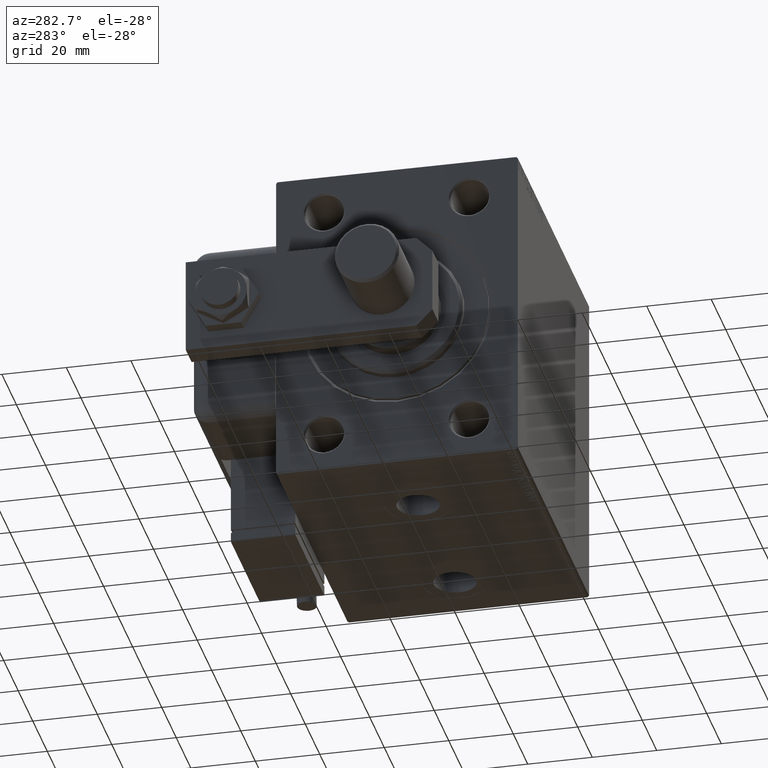
[diagram: clean part render]
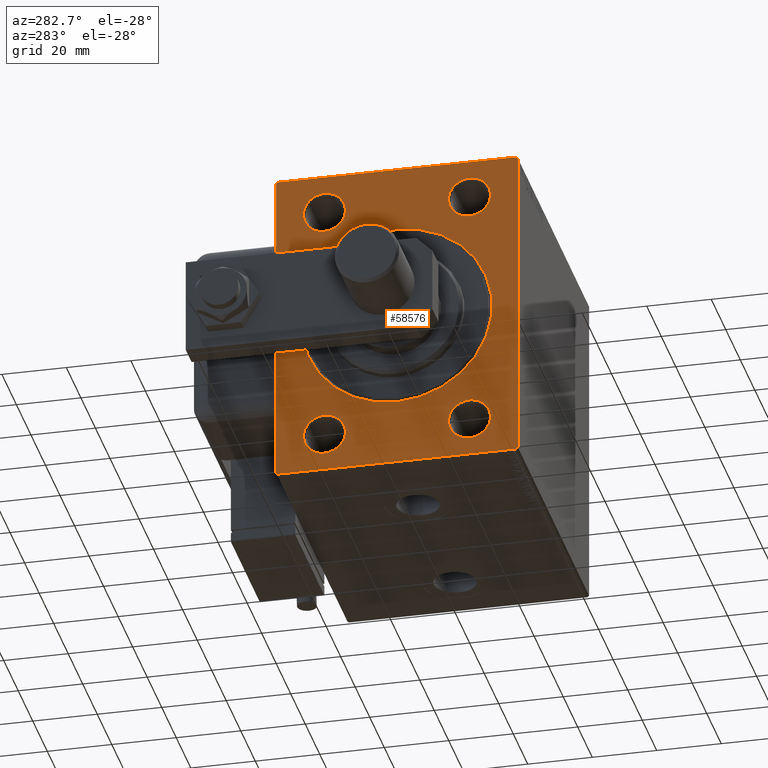
[diagram: same view with one face highlighted and labeled with its STEP entity id]
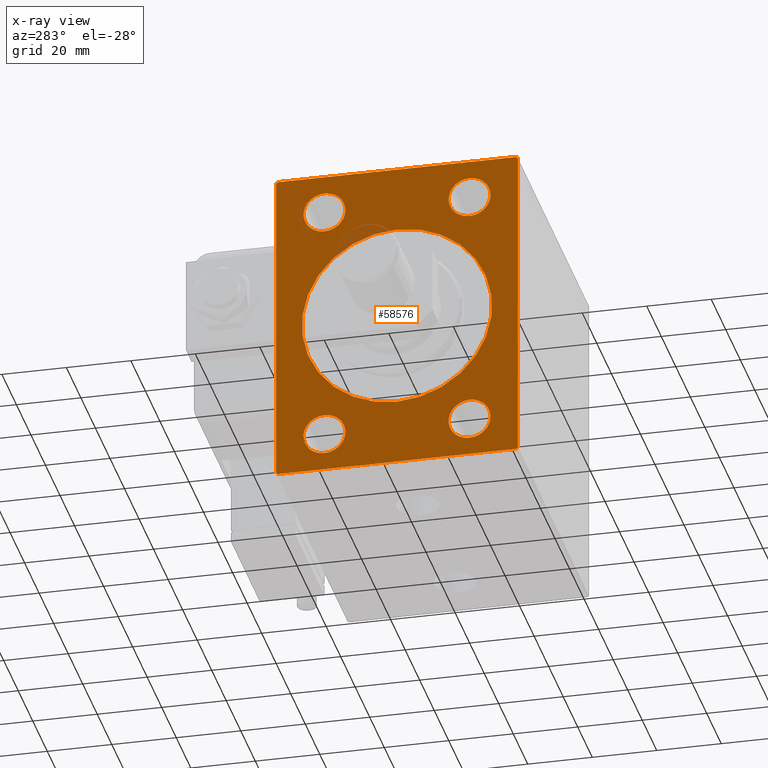
[diagram: x-ray of the same camera — body ghosted, the highlighted face saturated]
A machine part, auxiliary view. The second image highlights one B-rep face of the part: STEP entity #58576.
The next image is the same camera in x-ray: the body ghosted, the highlighted face saturated — about 2% of this face is hidden behind the body in this view.
In plain terms, the highlighted planar face has unit normal (1, 0, 0).
Its self-contained STEP definition (entity closure, byte-faithful):
#138 = AXIS2_PLACEMENT_3D ( 'NONE', #30244, #12131, #49274 ) ;
#396 = CARTESIAN_POINT ( 'NONE',  ( 0.000000000000000000, 37.00000000000000711, 50.00000000000000711 ) ) ;
#797 = ORIENTED_EDGE ( 'NONE', *, *, #22876, .T. ) ;
#922 = VECTOR ( 'NONE', #52270, 999.9999999999998863 ) ;
#1650 = VERTEX_POINT ( 'NONE', #38860 ) ;
#2864 = LINE ( 'NONE', #58121, #60255 ) ;
#2927 = FACE_BOUND ( 'NONE', #16418, .T. ) ;
#2989 = CARTESIAN_POINT ( 'NONE',  ( 0.000000000000000000, 22.50000000000000000, 44.49999999999998579 ) ) ;
#3238 = CARTESIAN_POINT ( 'NONE',  ( 0.000000000000000000, 37.00000000000000711, 50.00000000000000711 ) ) ;
#3618 = ORIENTED_EDGE ( 'NONE', *, *, #46144, .T. ) ;
#4849 = CARTESIAN_POINT ( 'NONE',  ( 0.000000000000000000, -22.50000000000000000, 31.50000000000000000 ) ) ;
#4969 = DIRECTION ( 'NONE',  ( 0.000000000000000000, 0.000000000000000000, -1.000000000000000000 ) ) ;
#5063 = CARTESIAN_POINT ( 'NONE',  ( 0.000000000000000000, 22.50000000000000000, 31.50000000000000000 ) ) ;
#5193 = ORIENTED_EDGE ( 'NONE', *, *, #11098, .T. ) ;
#5438 = CIRCLE ( 'NONE', #44652, 6.499999999999992006 ) ;
#5454 = CARTESIAN_POINT ( 'NONE',  ( 0.000000000000000000, -37.50000000000000000, 49.99999999999998579 ) ) ;
#5763 = EDGE_CURVE ( 'NONE', #52979, #28577, #6242, .T. ) ;
#6242 = LINE ( 'NONE', #33878, #24139 ) ;
#6357 = DIRECTION ( 'NONE',  ( 1.000000000000000000, 0.000000000000000000, 0.000000000000000000 ) ) ;
#7080 = ORIENTED_EDGE ( 'NONE', *, *, #8226, .T. ) ;
#7282 = ORIENTED_EDGE ( 'NONE', *, *, #17955, .F. ) ;
#7865 = CARTESIAN_POINT ( 'NONE',  ( 0.000000000000000000, 3.612708057484693970E-15, -29.50000000000001421 ) ) ;
#8226 = EDGE_CURVE ( 'NONE', #33283, #53509, #38046, .T. ) ;
#8267 = DIRECTION ( 'NONE',  ( 0.000000000000000000, -1.387778780781445676E-16, 1.000000000000000000 ) ) ;
#8679 = CARTESIAN_POINT ( 'NONE',  ( 0.000000000000000000, -22.50000000000000000, -38.00000000000000711 ) ) ;
#9590 = DIRECTION ( 'NONE',  ( 1.000000000000000000, 0.000000000000000000, 0.000000000000000000 ) ) ;
#10151 = VERTEX_POINT ( 'NONE', #5063 ) ;
#10915 = CIRCLE ( 'NONE', #138, 6.499999999999992006 ) ;
#10922 = CARTESIAN_POINT ( 'NONE',  ( 0.000000000000000000, 37.50000000000000711, -49.50000000000001421 ) ) ;
#10948 = CARTESIAN_POINT ( 'NONE',  ( 0.000000000000000000, 22.50000000000000000, -31.50000000000001421 ) ) ;
#11098 = EDGE_CURVE ( 'NONE', #44084, #25199, #28939, .T. ) ;
#11830 = AXIS2_PLACEMENT_3D ( 'NONE', #16765, #6357, #25091 ) ;
#12131 = DIRECTION ( 'NONE',  ( 1.000000000000000000, 0.000000000000000000, 0.000000000000000000 ) ) ;
#13041 = CARTESIAN_POINT ( 'NONE',  ( 0.000000000000000000, 0.000000000000000000, 0.000000000000000000 ) ) ;
#14213 = EDGE_CURVE ( 'NONE', #10151, #56848, #52056, .T. ) ;
#14863 = VECTOR ( 'NONE', #51806, 1000.000000000000114 ) ;
#15351 = ORIENTED_EDGE ( 'NONE', *, *, #5763, .T. ) ;
#15401 = EDGE_CURVE ( 'NONE', #30700, #21826, #10915, .T. ) ;
#15534 = AXIS2_PLACEMENT_3D ( 'NONE', #41217, #21598, #16985 ) ;
#16013 = DIRECTION ( 'NONE',  ( 0.000000000000000000, 0.000000000000000000, -1.000000000000000000 ) ) ;
#16418 = EDGE_LOOP ( 'NONE', ( #7080, #53743 ) ) ;
#16486 = CARTESIAN_POINT ( 'NONE',  ( 0.000000000000000000, -37.00000000000000000, -50.00000000000000000 ) ) ;
#16765 = CARTESIAN_POINT ( 'NONE',  ( 0.000000000000000000, 22.50000000000000000, 37.99999999999999289 ) ) ;
#16985 = DIRECTION ( 'NONE',  ( 0.000000000000000000, 0.000000000000000000, -1.000000000000000000 ) ) ;
#17789 = CIRCLE ( 'NONE', #29531, 6.499999999999992006 ) ;
#17955 = EDGE_CURVE ( 'NONE', #52979, #25199, #40205, .T. ) ;
#18120 = CARTESIAN_POINT ( 'NONE',  ( 0.000000000000000000, 37.00000000000001421, -50.00000000000000000 ) ) ;
#18561 = EDGE_LOOP ( 'NONE', ( #54103, #20573 ) ) ;
#19101 = AXIS2_PLACEMENT_3D ( 'NONE', #31298, #54940, #27308 ) ;
#19312 = DIRECTION ( 'NONE',  ( 1.000000000000000000, 0.000000000000000000, 0.000000000000000000 ) ) ;
#19322 = ORIENTED_EDGE ( 'NONE', *, *, #57793, .T. ) ;
#20306 = EDGE_LOOP ( 'NONE', ( #53044, #60516 ) ) ;
#20573 = ORIENTED_EDGE ( 'NONE', *, *, #38130, .T. ) ;
#21598 = DIRECTION ( 'NONE',  ( 1.000000000000000000, 0.000000000000000000, 0.000000000000000000 ) ) ;
#21826 = VERTEX_POINT ( 'NONE', #57209 ) ;
#22008 = DIRECTION ( 'NONE',  ( 1.000000000000000000, 0.000000000000000000, 0.000000000000000000 ) ) ;
#22268 = FACE_OUTER_BOUND ( 'NONE', #57650, .T. ) ;
#22464 = ORIENTED_EDGE ( 'NONE', *, *, #42073, .F. ) ;
#22876 = EDGE_CURVE ( 'NONE', #21826, #30700, #56124, .T. ) ;
#22983 = LINE ( 'NONE', #56435, #14863 ) ;
#23113 = DIRECTION ( 'NONE',  ( 0.000000000000000000, 0.000000000000000000, -1.000000000000000000 ) ) ;
#24139 = VECTOR ( 'NONE', #58098, 1000.000000000000000 ) ;
#24288 = CARTESIAN_POINT ( 'NONE',  ( 0.000000000000000000, -37.50000000000000000, 49.49999999999998579 ) ) ;
#24878 = EDGE_CURVE ( 'NONE', #35359, #32655, #37681, .T. ) ;
#25091 = DIRECTION ( 'NONE',  ( 0.000000000000000000, 0.000000000000000000, -1.000000000000000000 ) ) ;
#25199 = VERTEX_POINT ( 'NONE', #40716 ) ;
#25237 = CARTESIAN_POINT ( 'NONE',  ( 0.000000000000000000, 22.50000000000000000, -38.00000000000000711 ) ) ;
#25549 = VECTOR ( 'NONE', #8267, 1000.000000000000000 ) ;
#25707 = DIRECTION ( 'NONE',  ( 1.000000000000000000, 0.000000000000000000, 0.000000000000000000 ) ) ;
#26023 = CARTESIAN_POINT ( 'NONE',  ( 0.000000000000000000, 22.50000000000000000, -38.00000000000000711 ) ) ;
#26526 = EDGE_CURVE ( 'NONE', #44084, #1650, #2864, .T. ) ;
#26945 = CARTESIAN_POINT ( 'NONE',  ( 0.000000000000000000, 22.50000000000000000, -44.50000000000000000 ) ) ;
#27308 = DIRECTION ( 'NONE',  ( 0.000000000000000000, 0.000000000000000000, -1.000000000000000000 ) ) ;
#27943 = AXIS2_PLACEMENT_3D ( 'NONE', #13041, #50490, #58795 ) ;
#28567 = CARTESIAN_POINT ( 'NONE',  ( 0.000000000000000000, -37.50000000000000000, -50.00000000000000000 ) ) ;
#28577 = VERTEX_POINT ( 'NONE', #18120 ) ;
#28808 = CARTESIAN_POINT ( 'NONE',  ( 0.000000000000000000, 0.000000000000000000, 0.000000000000000000 ) ) ;
#28939 = LINE ( 'NONE', #396, #922 ) ;
#29283 = AXIS2_PLACEMENT_3D ( 'NONE', #28808, #19312, #53052 ) ;
#29531 = AXIS2_PLACEMENT_3D ( 'NONE', #26023, #25707, #44737 ) ;
#29664 = AXIS2_PLACEMENT_3D ( 'NONE', #8679, #50718, #4969 ) ;
#30003 = DIRECTION ( 'NONE',  ( 0.000000000000000000, 0.000000000000000000, -1.000000000000000000 ) ) ;
#30244 = CARTESIAN_POINT ( 'NONE',  ( 0.000000000000000000, -22.50000000000000000, -38.00000000000000711 ) ) ;
#30700 = VERTEX_POINT ( 'NONE', #47256 ) ;
#31298 = CARTESIAN_POINT ( 'NONE',  ( 0.000000000000000000, 0.000000000000000000, 0.000000000000000000 ) ) ;
#31758 = FACE_BOUND ( 'NONE', #20306, .T. ) ;
#32655 = VERTEX_POINT ( 'NONE', #52722 ) ;
#33283 = VERTEX_POINT ( 'NONE', #52795 ) ;
#33481 = DIRECTION ( 'NONE',  ( 0.000000000000000000, 1.000000000000000000, 0.000000000000000000 ) ) ;
#33878 = CARTESIAN_POINT ( 'NONE',  ( 0.000000000000000000, 37.50000000000000711, -49.50000000000001421 ) ) ;
#34092 = DIRECTION ( 'NONE',  ( -0.000000000000000000, 0.7071067811865525687, 0.7071067811865425767 ) ) ;
#34391 = LINE ( 'NONE', #24288, #37327 ) ;
#35359 = VERTEX_POINT ( 'NONE', #59736 ) ;
#35884 = CIRCLE ( 'NONE', #51556, 6.499999999999992006 ) ;
#36271 = LINE ( 'NONE', #28567, #44228 ) ;
#36312 = EDGE_CURVE ( 'NONE', #44346, #39295, #55740, .T. ) ;
#36594 = VERTEX_POINT ( 'NONE', #26945 ) ;
#37327 = VECTOR ( 'NONE', #34092, 999.9999999999998863 ) ;
#37365 = ORIENTED_EDGE ( 'NONE', *, *, #26526, .F. ) ;
#37535 = CARTESIAN_POINT ( 'NONE',  ( 0.000000000000000000, 0.000000000000000000, 29.50000000000001421 ) ) ;
#37681 = LINE ( 'NONE', #5454, #58191 ) ;
#37827 = CARTESIAN_POINT ( 'NONE',  ( 0.000000000000000000, 22.50000000000000000, 37.99999999999999289 ) ) ;
#38046 = CIRCLE ( 'NONE', #15534, 6.499999999999992006 ) ;
#38130 = EDGE_CURVE ( 'NONE', #36594, #60432, #38214, .T. ) ;
#38214 = CIRCLE ( 'NONE', #47010, 6.499999999999992006 ) ;
#38860 = CARTESIAN_POINT ( 'NONE',  ( 0.000000000000000000, -36.99999999999999289, 49.99999999999998579 ) ) ;
#39076 = EDGE_LOOP ( 'NONE', ( #46442, #19322 ) ) ;
#39295 = VERTEX_POINT ( 'NONE', #7865 ) ;
#40205 = LINE ( 'NONE', #54321, #25549 ) ;
#40310 = DIRECTION ( 'NONE',  ( 0.000000000000000000, -1.000000000000000000, -2.775557561562891844E-16 ) ) ;
#40716 = CARTESIAN_POINT ( 'NONE',  ( 0.000000000000000000, 37.49999999999999289, 49.50000000000002842 ) ) ;
#41217 = CARTESIAN_POINT ( 'NONE',  ( 0.000000000000000000, -22.50000000000000000, 37.99999999999999289 ) ) ;
#42073 = EDGE_CURVE ( 'NONE', #46344, #28577, #36271, .T. ) ;
#42104 = FACE_BOUND ( 'NONE', #51667, .T. ) ;
#42185 = EDGE_CURVE ( 'NONE', #35359, #1650, #34391, .T. ) ;
#44084 = VERTEX_POINT ( 'NONE', #3238 ) ;
#44228 = VECTOR ( 'NONE', #33481, 1000.000000000000000 ) ;
#44346 = VERTEX_POINT ( 'NONE', #37535 ) ;
#44652 = AXIS2_PLACEMENT_3D ( 'NONE', #49640, #22008, #30003 ) ;
#44737 = DIRECTION ( 'NONE',  ( 0.000000000000000000, 0.000000000000000000, -1.000000000000000000 ) ) ;
#46144 = EDGE_CURVE ( 'NONE', #46344, #32655, #22983, .T. ) ;
#46344 = VERTEX_POINT ( 'NONE', #16486 ) ;
#46392 = EDGE_CURVE ( 'NONE', #60432, #36594, #17789, .T. ) ;
#46442 = ORIENTED_EDGE ( 'NONE', *, *, #36312, .T. ) ;
#46457 = ORIENTED_EDGE ( 'NONE', *, *, #42185, .T. ) ;
#47010 = AXIS2_PLACEMENT_3D ( 'NONE', #25237, #58667, #16013 ) ;
#47256 = CARTESIAN_POINT ( 'NONE',  ( 0.000000000000000000, -22.50000000000000000, -44.50000000000000000 ) ) ;
#49274 = DIRECTION ( 'NONE',  ( 0.000000000000000000, 0.000000000000000000, -1.000000000000000000 ) ) ;
#49640 = CARTESIAN_POINT ( 'NONE',  ( 0.000000000000000000, -22.50000000000000000, 37.99999999999999289 ) ) ;
#50490 = DIRECTION ( 'NONE',  ( 1.000000000000000000, 0.000000000000000000, 0.000000000000000000 ) ) ;
#50718 = DIRECTION ( 'NONE',  ( 1.000000000000000000, 0.000000000000000000, 0.000000000000000000 ) ) ;
#51556 = AXIS2_PLACEMENT_3D ( 'NONE', #37827, #9590, #23113 ) ;
#51667 = EDGE_LOOP ( 'NONE', ( #797, #52461 ) ) ;
#51806 = DIRECTION ( 'NONE',  ( -0.000000000000000000, -0.7071067811865474617, 0.7071067811865474617 ) ) ;
#52056 = CIRCLE ( 'NONE', #11830, 6.499999999999992006 ) ;
#52270 = DIRECTION ( 'NONE',  ( -0.000000000000000000, 0.7071067811865525687, -0.7071067811865425767 ) ) ;
#52414 = DIRECTION ( 'NONE',  ( 0.000000000000000000, 0.000000000000000000, -1.000000000000000000 ) ) ;
#52461 = ORIENTED_EDGE ( 'NONE', *, *, #15401, .T. ) ;
#52722 = CARTESIAN_POINT ( 'NONE',  ( 0.000000000000000000, -37.50000000000000000, -49.49999999999997158 ) ) ;
#52795 = CARTESIAN_POINT ( 'NONE',  ( 0.000000000000000000, -22.50000000000000000, 44.49999999999998579 ) ) ;
#52979 = VERTEX_POINT ( 'NONE', #10922 ) ;
#53044 = ORIENTED_EDGE ( 'NONE', *, *, #60001, .T. ) ;
#53052 = DIRECTION ( 'NONE',  ( 0.000000000000000000, 0.000000000000000000, -1.000000000000000000 ) ) ;
#53402 = CIRCLE ( 'NONE', #19101, 29.50000000000001421 ) ;
#53509 = VERTEX_POINT ( 'NONE', #4849 ) ;
#53743 = ORIENTED_EDGE ( 'NONE', *, *, #56188, .T. ) ;
#53879 = FACE_BOUND ( 'NONE', #18561, .T. ) ;
#54103 = ORIENTED_EDGE ( 'NONE', *, *, #46392, .T. ) ;
#54321 = CARTESIAN_POINT ( 'NONE',  ( 0.000000000000000000, 37.50000000000000711, -50.00000000000000000 ) ) ;
#54940 = DIRECTION ( 'NONE',  ( 1.000000000000000000, 0.000000000000000000, 0.000000000000000000 ) ) ;
#55101 = FACE_BOUND ( 'NONE', #39076, .T. ) ;
#55740 = CIRCLE ( 'NONE', #29283, 29.50000000000001421 ) ;
#56124 = CIRCLE ( 'NONE', #29664, 6.499999999999992006 ) ;
#56188 = EDGE_CURVE ( 'NONE', #53509, #33283, #5438, .T. ) ;
#56435 = CARTESIAN_POINT ( 'NONE',  ( 0.000000000000000000, -37.00000000000000000, -50.00000000000000000 ) ) ;
#56848 = VERTEX_POINT ( 'NONE', #2989 ) ;
#57209 = CARTESIAN_POINT ( 'NONE',  ( 0.000000000000000000, -22.50000000000000000, -31.50000000000001421 ) ) ;
#57650 = EDGE_LOOP ( 'NONE', ( #57815, #46457, #37365, #5193, #7282, #15351, #22464, #3618 ) ) ;
#57793 = EDGE_CURVE ( 'NONE', #39295, #44346, #53402, .T. ) ;
#57815 = ORIENTED_EDGE ( 'NONE', *, *, #24878, .F. ) ;
#58098 = DIRECTION ( 'NONE',  ( 0.000000000000000000, -0.7071067811865524577, -0.7071067811865426878 ) ) ;
#58121 = CARTESIAN_POINT ( 'NONE',  ( 0.000000000000000000, 37.49999999999999289, 50.00000000000000711 ) ) ;
#58191 = VECTOR ( 'NONE', #52414, 1000.000000000000000 ) ;
#58576 = ADVANCED_FACE ( 'NONE', ( #55101, #42104, #2927, #31758, #53879, #22268 ), #59710, .F. ) ;
#58667 = DIRECTION ( 'NONE',  ( 1.000000000000000000, 0.000000000000000000, 0.000000000000000000 ) ) ;
#58795 = DIRECTION ( 'NONE',  ( 0.000000000000000000, 0.000000000000000000, -1.000000000000000000 ) ) ;
#59710 = PLANE ( 'NONE',  #27943 ) ;
#59736 = CARTESIAN_POINT ( 'NONE',  ( 0.000000000000000000, -37.50000000000000000, 49.49999999999998579 ) ) ;
#60001 = EDGE_CURVE ( 'NONE', #56848, #10151, #35884, .T. ) ;
#60255 = VECTOR ( 'NONE', #40310, 1000.000000000000000 ) ;
#60432 = VERTEX_POINT ( 'NONE', #10948 ) ;
#60516 = ORIENTED_EDGE ( 'NONE', *, *, #14213, .T. ) ;